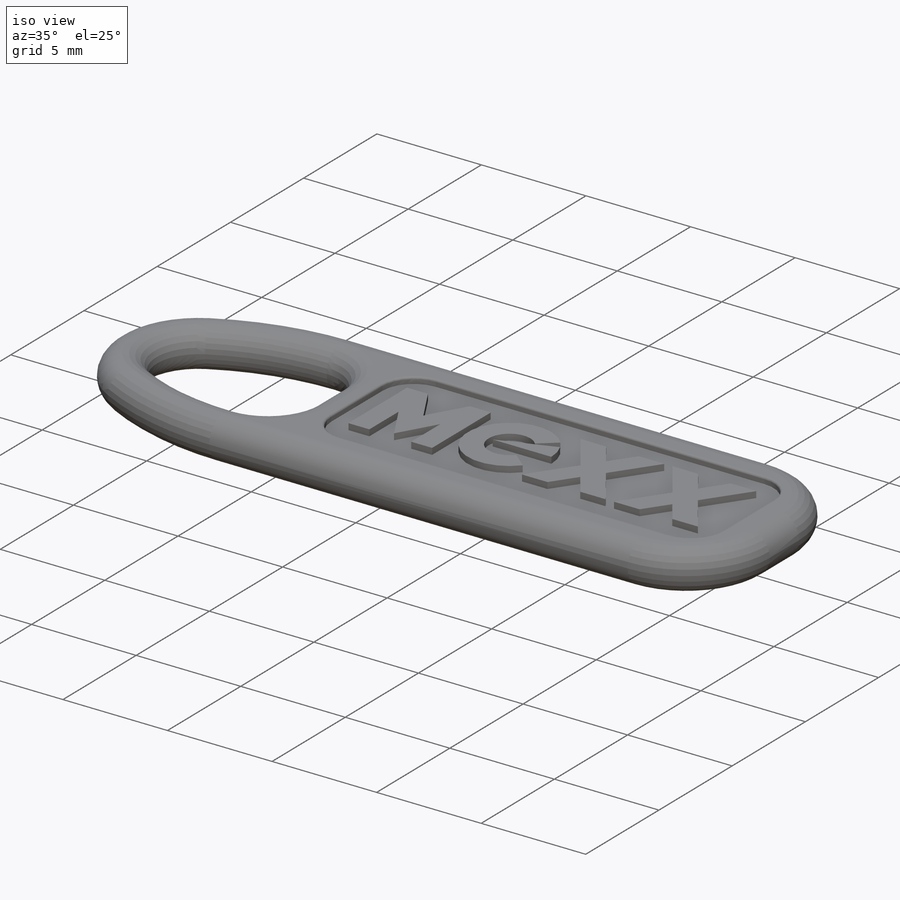
[diagram: iso view]
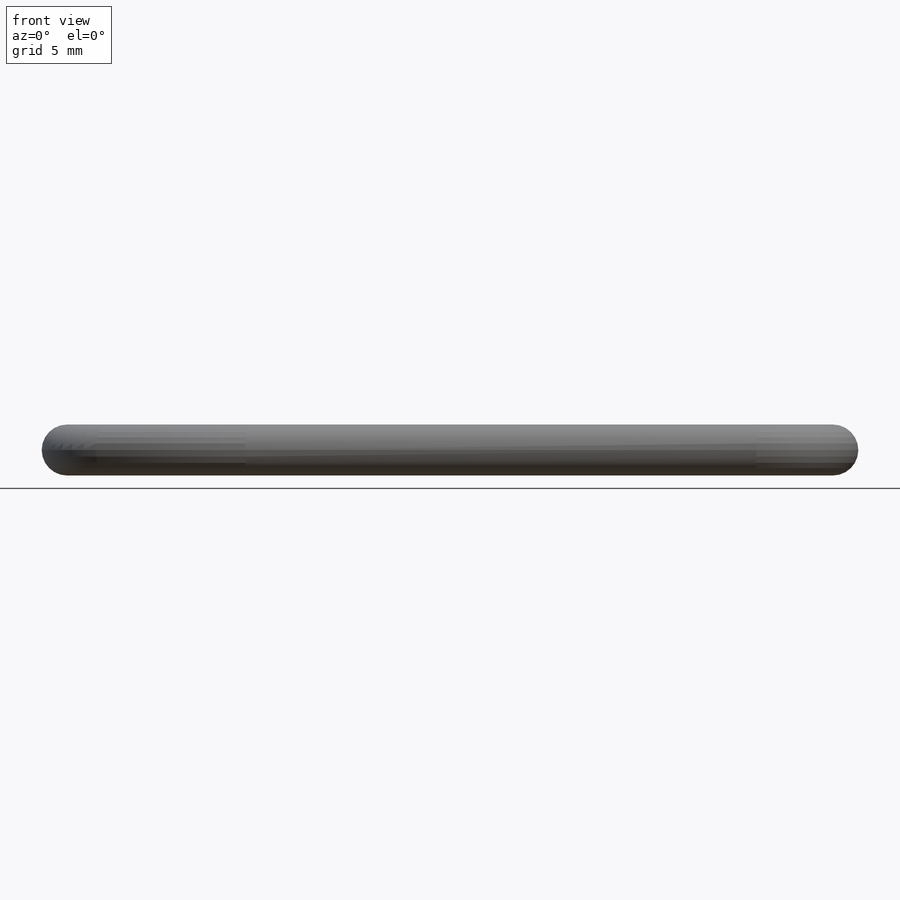
[diagram: front view]
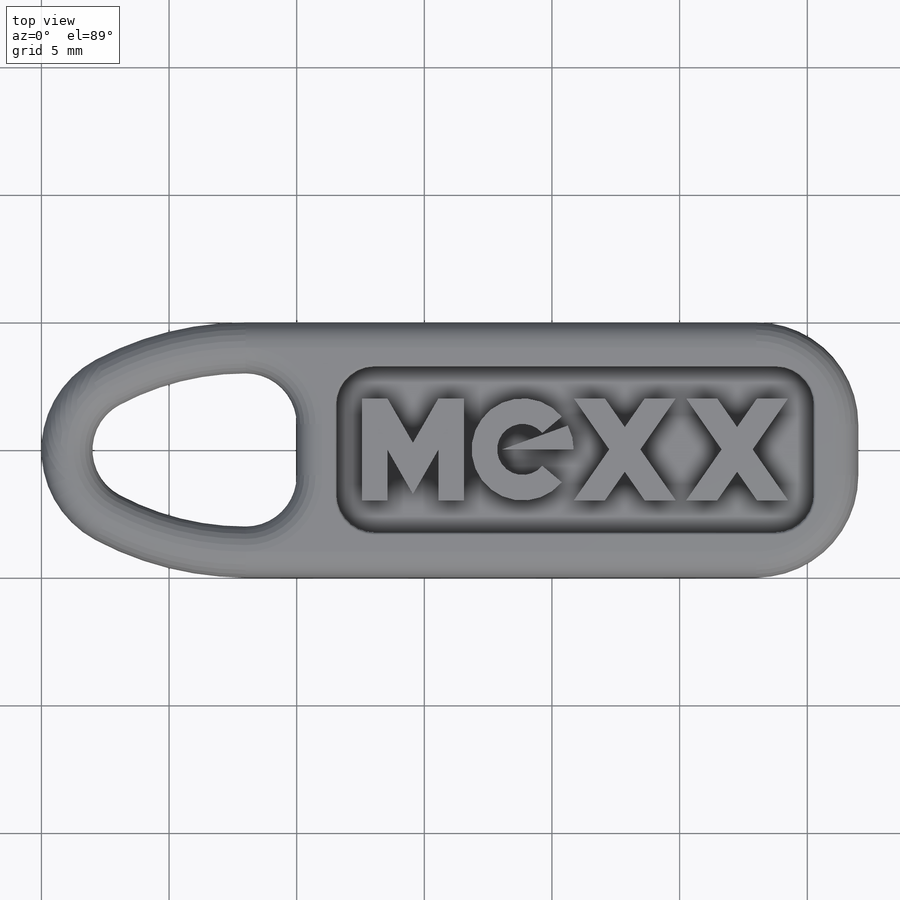
[diagram: top view]
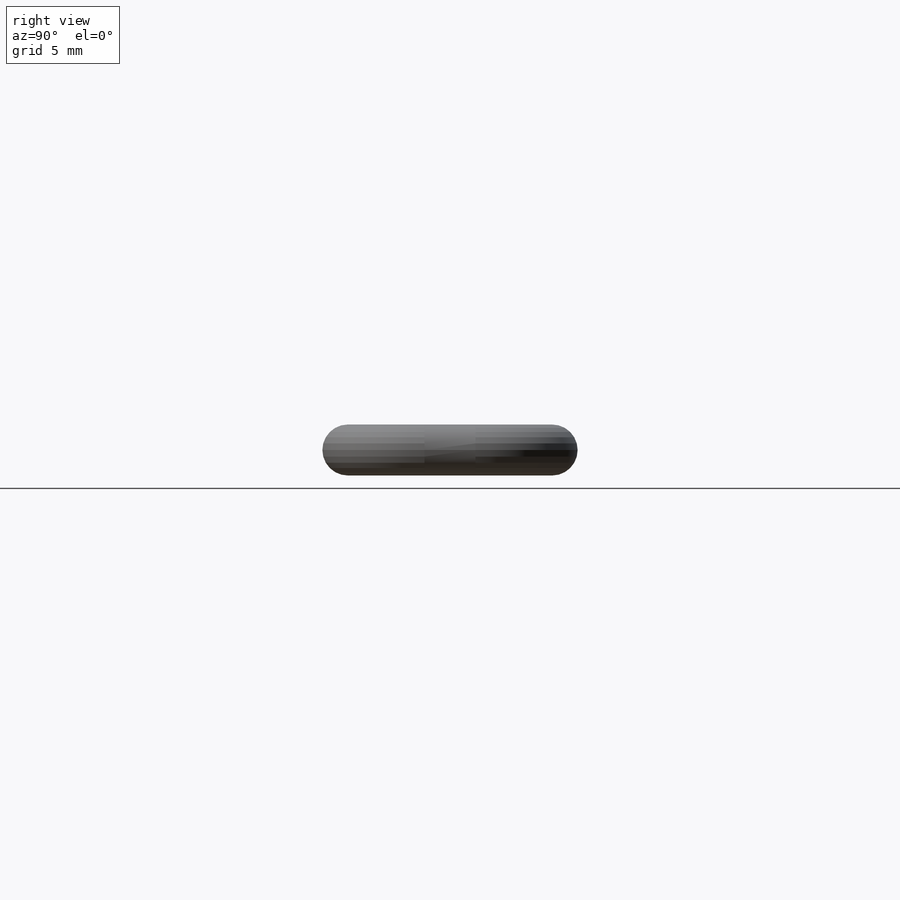
[diagram: right view]
SOLIDWORKS PART (.sldprt)
format: sldprt  version: not decoded by parser v0  size: 501,248 bytes
history: native  units: mm
features: plane x3, fillet x3, sketch x2, material x1, extrude x1, cut_extrude x1, pattern_circular x1 (+9 scaffold rows collapsed)
feature tree (21):
  scaffold x9  (default folders/planes/origin — collapsed)
  material  "Material <nicht festgelegt>"
  plane  "Ebene vorne"
  plane  "Ebene oben"
  plane  "Ebene rechts"
  sketch  "Skizze1"  dims[c1.D1=~12.373952mm c1.D2=~8.148967mm c1.D5=2.0mm c1.D8=2.0mm c2.D1=~32.621591mm c2.D2=~70.800934mm c3.D1=~101.291389mm c3.D2=32.0mm c3.D3=~70.800292mm c4.D3=~0.488032deg c5.D3=10.0mm c5.D4=6.0mm c5.D6=10.0mm c5.D7=22.0mm c5.D1=2.0mm]
  extrude  "Aufsatz-Linear austragen1"  Depth=2mm
  fillet  "Verrundung2"  Radius=4mm
  fillet  "Verrundung1"  Radius=1mm
  sketch  "Skizze2"  dims[c1.D1=1.5mm c1.D2=~2.501019mm c1.D5=~1.145637mm c2.D1=~5.689065mm c2.D2=~0.562048mm c2.D3=5.0mm c2.D4=0.2mm c2.D5=0.2mm c2.D6=1.0mm c2.D7=4.0mm c2.D8=6.5mm c2.D9=0.5mm c2.D10=0.3mm c2.D11=1.0mm c2.D12=0.55mm c2.D13=0.75mm c2.D14=0.7653mm c3.D14=80.0deg c3.D15=~2.738289mm c4.D15=20.0deg c4.D16=~1.277002mm c5.D16=~72.784704deg c6.D16=~1.592571mm c7.D16=60.0deg c7.D17=~0.157085mm c7.D2=4.4mm c7.D3=1.0mm]
  cut_extrude  "Schnitt-Linear austragen1"  Depth=0.3mm
  pattern_circular  "Kreismuster3"  Count=2 Angle=180deg
  fillet  "Verrundung3"  Radius=0.1mm
decode coverage: 8 of 8 modeling features carry decoded parameters
note: ~ marks probable driven/reference dimensions
note: suppression state not decoded; provenance and decode notes live in map.json
